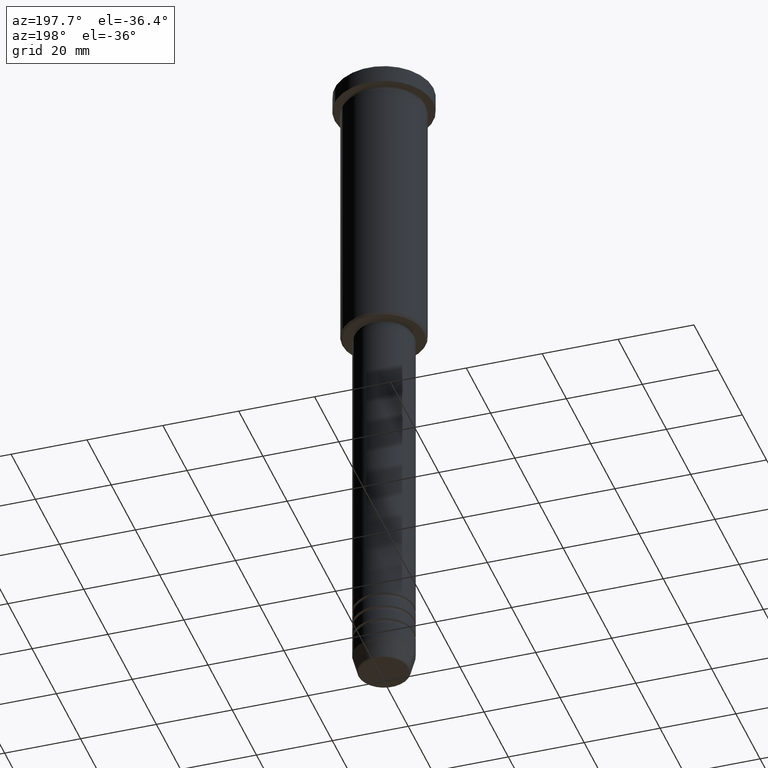
[diagram: clean part render]
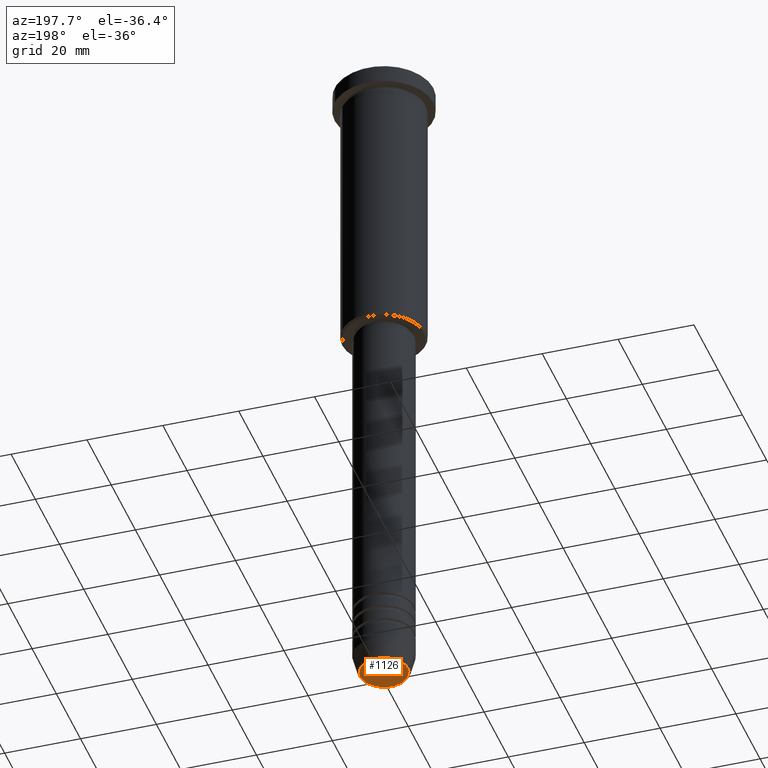
[diagram: same view with one face highlighted and labeled with its STEP entity id]
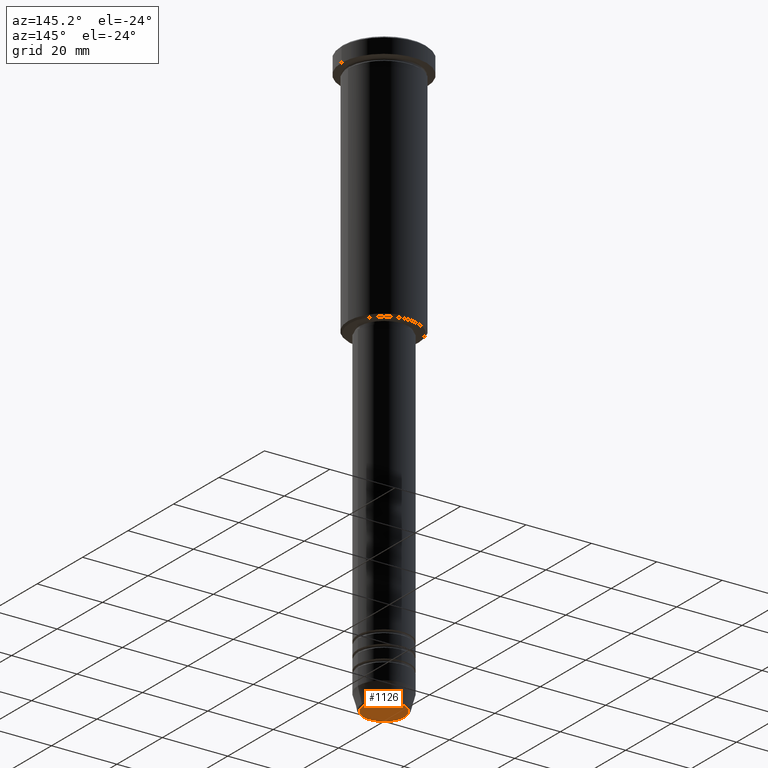
[diagram: same view with one face highlighted and labeled with its STEP entity id]
A machine part, auxiliary view. The second image highlights one B-rep face of the part: STEP entity #1126.
A second angle (auxiliary view) of the same face is appended — the face is thin or edge-on in the first view.
In plain terms, the highlighted planar face has unit normal (0, -0, 1).
Its self-contained STEP definition (entity closure, byte-faithful):
#99 = EDGE_CURVE ( 'NONE', #663, #357, #660, .T. ) ;
#100 = CARTESIAN_POINT ( 'NONE',  ( 0.000000000000000000, 0.000000000000000000, -180.0000000000000000 ) ) ;
#153 = AXIS2_PLACEMENT_3D ( 'NONE', #100, #481, #379 ) ;
#154 = CARTESIAN_POINT ( 'NONE',  ( -6.276590543854911886, 7.982336011935132188E-16, -180.0000000000000000 ) ) ;
#198 = CIRCLE ( 'NONE', #153, 6.276590543854911886 ) ;
#263 = FACE_OUTER_BOUND ( 'NONE', #370, .T. ) ;
#346 = AXIS2_PLACEMENT_3D ( 'NONE', #773, #531, #965 ) ;
#357 = VERTEX_POINT ( 'NONE', #771 ) ;
#370 = EDGE_LOOP ( 'NONE', ( #575, #1078 ) ) ;
#379 = DIRECTION ( 'NONE',  ( 1.000000000000000000, 0.000000000000000000, 0.000000000000000000 ) ) ;
#476 = AXIS2_PLACEMENT_3D ( 'NONE', #1183, #1059, #1112 ) ;
#481 = DIRECTION ( 'NONE',  ( 0.000000000000000000, 0.000000000000000000, -1.000000000000000000 ) ) ;
#531 = DIRECTION ( 'NONE',  ( 0.000000000000000000, 0.000000000000000000, -1.000000000000000000 ) ) ;
#575 = ORIENTED_EDGE ( 'NONE', *, *, #798, .T. ) ;
#642 = PLANE ( 'NONE',  #476 ) ;
#660 = CIRCLE ( 'NONE', #346, 6.276590543854911886 ) ;
#663 = VERTEX_POINT ( 'NONE', #154 ) ;
#771 = CARTESIAN_POINT ( 'NONE',  ( 6.276590543854911886, 0.000000000000000000, -180.0000000000000000 ) ) ;
#773 = CARTESIAN_POINT ( 'NONE',  ( 0.000000000000000000, 0.000000000000000000, -180.0000000000000000 ) ) ;
#798 = EDGE_CURVE ( 'NONE', #357, #663, #198, .T. ) ;
#965 = DIRECTION ( 'NONE',  ( 1.000000000000000000, 0.000000000000000000, 0.000000000000000000 ) ) ;
#1059 = DIRECTION ( 'NONE',  ( 0.000000000000000000, -0.000000000000000000, 1.000000000000000000 ) ) ;
#1078 = ORIENTED_EDGE ( 'NONE', *, *, #99, .T. ) ;
#1112 = DIRECTION ( 'NONE',  ( 1.000000000000000000, 0.000000000000000000, 0.000000000000000000 ) ) ;
#1126 = ADVANCED_FACE ( 'NONE', ( #263 ), #642, .F. ) ;
#1183 = CARTESIAN_POINT ( 'NONE',  ( 0.000000000000000000, 0.000000000000000000, -180.0000000000000000 ) ) ;